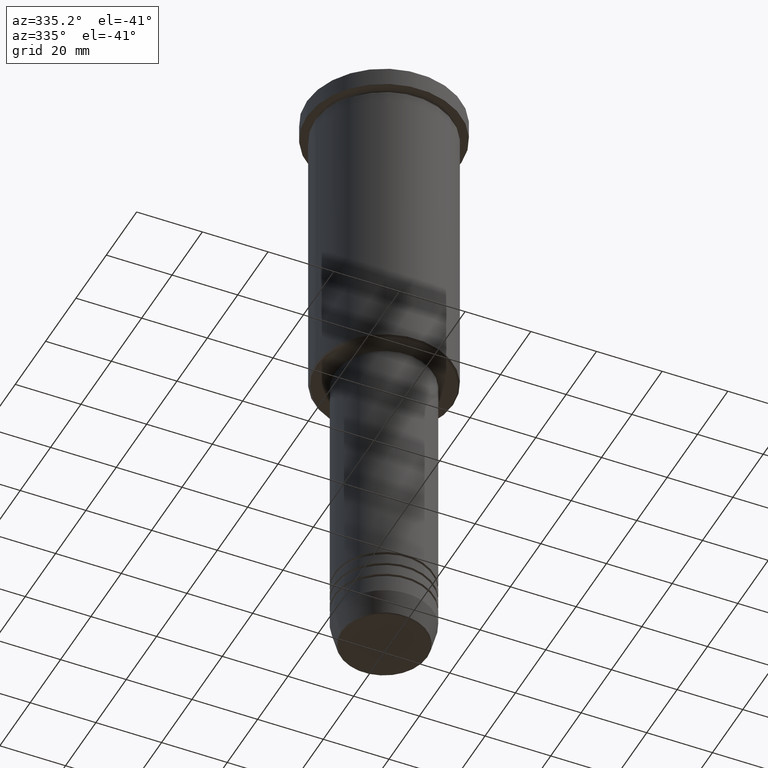
[diagram: clean part render]
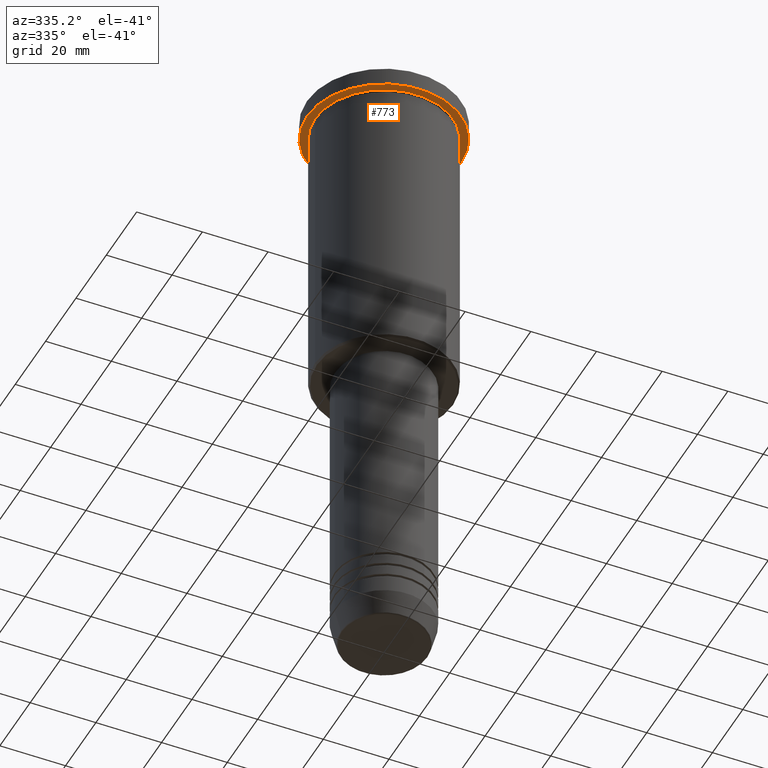
[diagram: same view with one face highlighted and labeled with its STEP entity id]
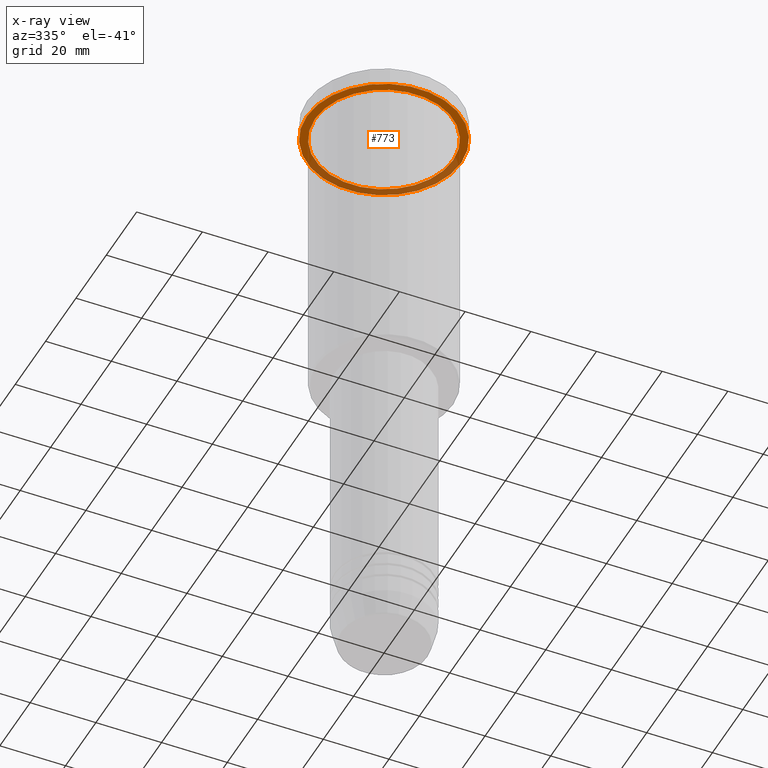
[diagram: x-ray of the same camera — body ghosted, the highlighted face saturated]
A machine part, auxiliary view. The second image highlights one B-rep face of the part: STEP entity #773.
The next image is the same camera in x-ray: the body ghosted, the highlighted face saturated — about 37% of this face is hidden behind the body in this view.
In plain terms, the highlighted planar face has unit normal (0, 0, -1).
Its self-contained STEP definition (entity closure, byte-faithful):
#9 = ORIENTED_EDGE ( 'NONE', *, *, #1020, .T. ) ;
#11 = EDGE_CURVE ( 'NONE', #196, #287, #764, .T. ) ;
#77 = DIRECTION ( 'NONE',  ( -0.000000000000000000, -0.000000000000000000, 1.000000000000000000 ) ) ;
#144 = AXIS2_PLACEMENT_3D ( 'NONE', #543, #1096, #644 ) ;
#160 = CARTESIAN_POINT ( 'NONE',  ( 0.000000000000000000, 0.000000000000000000, -5.999999999999993783 ) ) ;
#177 = DIRECTION ( 'NONE',  ( -0.000000000000000000, -0.000000000000000000, 1.000000000000000000 ) ) ;
#184 = CIRCLE ( 'NONE', #693, 21.00000000000000000 ) ;
#188 = DIRECTION ( 'NONE',  ( -0.000000000000000000, -0.000000000000000000, 1.000000000000000000 ) ) ;
#196 = VERTEX_POINT ( 'NONE', #1097 ) ;
#221 = CIRCLE ( 'NONE', #237, 23.50000000000000000 ) ;
#237 = AXIS2_PLACEMENT_3D ( 'NONE', #999, #188, #907 ) ;
#251 = AXIS2_PLACEMENT_3D ( 'NONE', #356, #177, #1079 ) ;
#287 = VERTEX_POINT ( 'NONE', #851 ) ;
#308 = ORIENTED_EDGE ( 'NONE', *, *, #11, .F. ) ;
#337 = CIRCLE ( 'NONE', #460, 21.00000000000000000 ) ;
#356 = CARTESIAN_POINT ( 'NONE',  ( 0.000000000000000000, 0.000000000000000000, -5.999999999999993783 ) ) ;
#359 = PLANE ( 'NONE',  #144 ) ;
#362 = EDGE_LOOP ( 'NONE', ( #395, #308 ) ) ;
#395 = ORIENTED_EDGE ( 'NONE', *, *, #829, .F. ) ;
#460 = AXIS2_PLACEMENT_3D ( 'NONE', #704, #77, #886 ) ;
#463 = ORIENTED_EDGE ( 'NONE', *, *, #986, .T. ) ;
#543 = CARTESIAN_POINT ( 'NONE',  ( 0.000000000000000000, 23.50000000000000000, -5.999999999999993783 ) ) ;
#630 = CARTESIAN_POINT ( 'NONE',  ( -21.00000000000000000, 0.000000000000000000, -5.999999999999992895 ) ) ;
#644 = DIRECTION ( 'NONE',  ( -1.000000000000000000, 0.000000000000000000, -0.000000000000000000 ) ) ;
#693 = AXIS2_PLACEMENT_3D ( 'NONE', #160, #817, #990 ) ;
#704 = CARTESIAN_POINT ( 'NONE',  ( 0.000000000000000000, 0.000000000000000000, -5.999999999999993783 ) ) ;
#727 = EDGE_LOOP ( 'NONE', ( #9, #463 ) ) ;
#742 = FACE_BOUND ( 'NONE', #727, .T. ) ;
#764 = CIRCLE ( 'NONE', #251, 23.50000000000000000 ) ;
#773 = ADVANCED_FACE ( 'NONE', ( #742, #816 ), #359, .T. ) ;
#776 = VERTEX_POINT ( 'NONE', #1009 ) ;
#816 = FACE_OUTER_BOUND ( 'NONE', #362, .T. ) ;
#817 = DIRECTION ( 'NONE',  ( -0.000000000000000000, -0.000000000000000000, 1.000000000000000000 ) ) ;
#825 = VERTEX_POINT ( 'NONE', #630 ) ;
#829 = EDGE_CURVE ( 'NONE', #287, #196, #221, .T. ) ;
#851 = CARTESIAN_POINT ( 'NONE',  ( 23.50000000000000000, 0.000000000000000000, -5.999999999999993783 ) ) ;
#886 = DIRECTION ( 'NONE',  ( -1.000000000000000000, 0.000000000000000000, 0.000000000000000000 ) ) ;
#907 = DIRECTION ( 'NONE',  ( 1.000000000000000000, 0.000000000000000000, 0.000000000000000000 ) ) ;
#986 = EDGE_CURVE ( 'NONE', #776, #825, #184, .T. ) ;
#990 = DIRECTION ( 'NONE',  ( -1.000000000000000000, 0.000000000000000000, 0.000000000000000000 ) ) ;
#999 = CARTESIAN_POINT ( 'NONE',  ( 0.000000000000000000, 0.000000000000000000, -5.999999999999993783 ) ) ;
#1009 = CARTESIAN_POINT ( 'NONE',  ( 21.00000000000000000, 2.571758278209441661E-15, -5.999999999999992895 ) ) ;
#1020 = EDGE_CURVE ( 'NONE', #825, #776, #337, .T. ) ;
#1079 = DIRECTION ( 'NONE',  ( 1.000000000000000000, 0.000000000000000000, 0.000000000000000000 ) ) ;
#1096 = DIRECTION ( 'NONE',  ( 0.000000000000000000, 0.000000000000000000, -1.000000000000000000 ) ) ;
#1097 = CARTESIAN_POINT ( 'NONE',  ( -23.50000000000000000, 2.877919977996280320E-15, -5.999999999999993783 ) ) ;